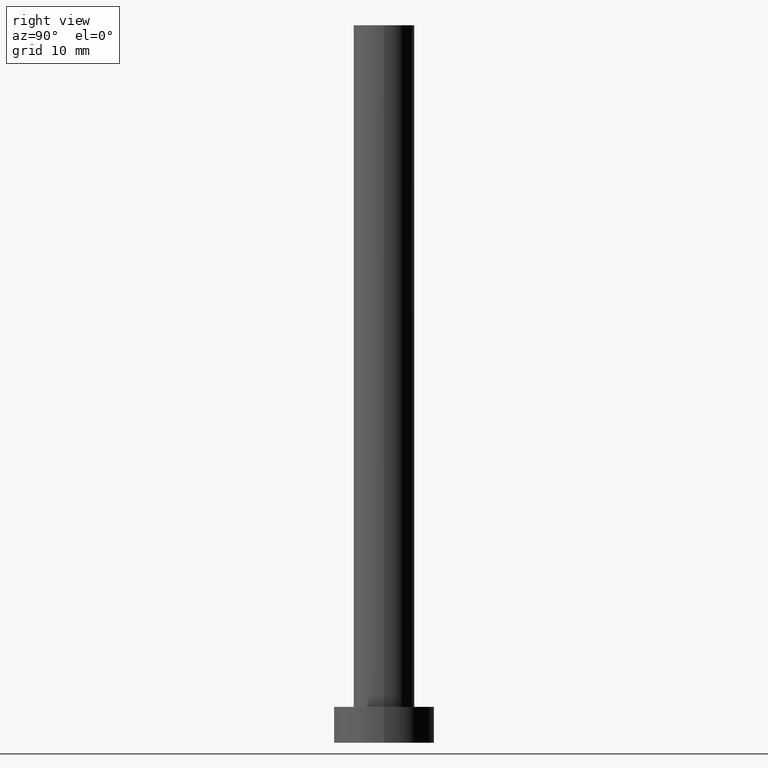
[diagram: clean part render]
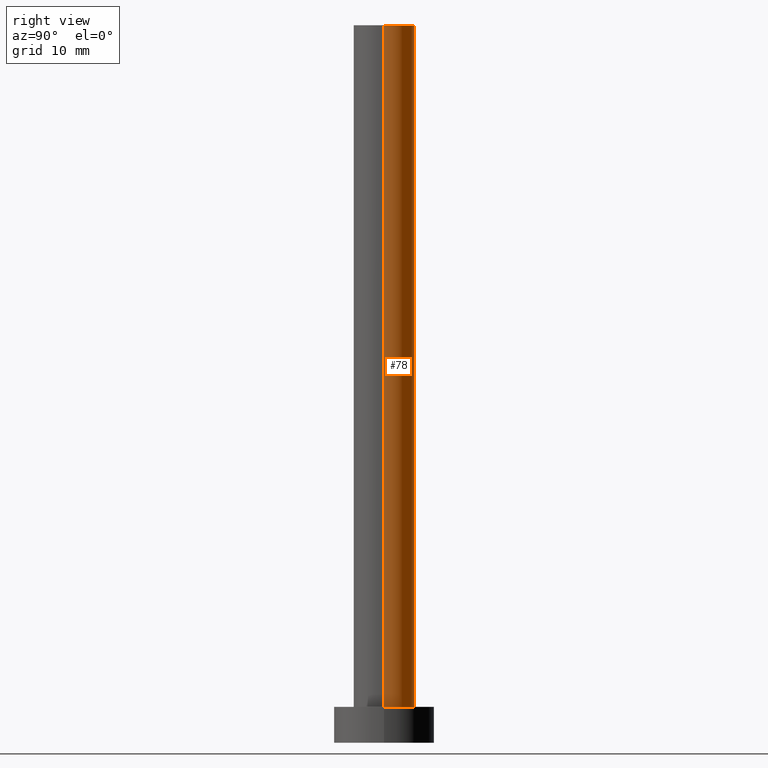
[diagram: same view with one face highlighted and labeled with its STEP entity id]
A machine part, right view. The second image highlights one B-rep face of the part: STEP entity #78.
In plain terms, the highlighted cylindrical surface (edge-blend (fillet) strip) has radius 4.25 mm, axis along (-0, -0, -1).
Its self-contained STEP definition (entity closure, byte-faithful):
#5 = EDGE_CURVE ( 'NONE', #208, #34, #149, .T. ) ;
#7 = AXIS2_PLACEMENT_3D ( 'NONE', #165, #176, #136 ) ;
#34 = VERTEX_POINT ( 'NONE', #171 ) ;
#35 = VECTOR ( 'NONE', #56, 1000.000000000000000 ) ;
#50 = DIRECTION ( 'NONE',  ( -0.000000000000000000, -0.000000000000000000, -1.000000000000000000 ) ) ;
#56 = DIRECTION ( 'NONE',  ( -0.000000000000000000, -0.000000000000000000, -1.000000000000000000 ) ) ;
#59 = LINE ( 'NONE', #98, #35 ) ;
#71 = CARTESIAN_POINT ( 'NONE',  ( 0.000000000000000000, 0.000000000000000000, 100.0000000000000000 ) ) ;
#78 = ADVANCED_FACE ( 'NONE', ( #193 ), #249, .T. ) ;
#79 = CARTESIAN_POINT ( 'NONE',  ( 4.250000000000000000, 5.204748896376250699E-16, 100.0000000000000000 ) ) ;
#84 = ORIENTED_EDGE ( 'NONE', *, *, #5, .T. ) ;
#89 = EDGE_CURVE ( 'NONE', #208, #128, #125, .T. ) ;
#92 = ORIENTED_EDGE ( 'NONE', *, *, #89, .F. ) ;
#96 = CARTESIAN_POINT ( 'NONE',  ( -4.250000000000000000, 0.000000000000000000, 5.000000000000000000 ) ) ;
#98 = CARTESIAN_POINT ( 'NONE',  ( -4.250000000000000000, 0.000000000000000000, 100.0000000000000000 ) ) ;
#117 = AXIS2_PLACEMENT_3D ( 'NONE', #178, #216, #239 ) ;
#125 = CIRCLE ( 'NONE', #7, 4.250000000000000000 ) ;
#128 = VERTEX_POINT ( 'NONE', #213 ) ;
#136 = DIRECTION ( 'NONE',  ( 1.000000000000000000, 0.000000000000000000, 0.000000000000000000 ) ) ;
#145 = VERTEX_POINT ( 'NONE', #96 ) ;
#149 = LINE ( 'NONE', #245, #209 ) ;
#165 = CARTESIAN_POINT ( 'NONE',  ( 0.000000000000000000, 0.000000000000000000, 100.0000000000000000 ) ) ;
#171 = CARTESIAN_POINT ( 'NONE',  ( 4.250000000000000000, 5.204748896376250699E-16, 5.000000000000000000 ) ) ;
#176 = DIRECTION ( 'NONE',  ( 0.000000000000000000, 0.000000000000000000, 1.000000000000000000 ) ) ;
#178 = CARTESIAN_POINT ( 'NONE',  ( 0.000000000000000000, 0.000000000000000000, 5.000000000000000000 ) ) ;
#185 = DIRECTION ( 'NONE',  ( -1.000000000000000000, 0.000000000000000000, 0.000000000000000000 ) ) ;
#187 = ORIENTED_EDGE ( 'NONE', *, *, #190, .T. ) ;
#190 = EDGE_CURVE ( 'NONE', #34, #145, #242, .T. ) ;
#193 = FACE_OUTER_BOUND ( 'NONE', #226, .T. ) ;
#206 = EDGE_CURVE ( 'NONE', #128, #145, #59, .T. ) ;
#208 = VERTEX_POINT ( 'NONE', #79 ) ;
#209 = VECTOR ( 'NONE', #50, 1000.000000000000000 ) ;
#213 = CARTESIAN_POINT ( 'NONE',  ( -4.250000000000000000, 0.000000000000000000, 100.0000000000000000 ) ) ;
#216 = DIRECTION ( 'NONE',  ( 0.000000000000000000, 0.000000000000000000, 1.000000000000000000 ) ) ;
#226 = EDGE_LOOP ( 'NONE', ( #92, #84, #187, #230 ) ) ;
#230 = ORIENTED_EDGE ( 'NONE', *, *, #206, .F. ) ;
#231 = DIRECTION ( 'NONE',  ( -0.000000000000000000, -0.000000000000000000, -1.000000000000000000 ) ) ;
#239 = DIRECTION ( 'NONE',  ( 1.000000000000000000, 0.000000000000000000, 0.000000000000000000 ) ) ;
#242 = CIRCLE ( 'NONE', #117, 4.250000000000000000 ) ;
#245 = CARTESIAN_POINT ( 'NONE',  ( 4.250000000000000000, 5.204748896376250699E-16, 100.0000000000000000 ) ) ;
#249 = CYLINDRICAL_SURFACE ( 'NONE', #254, 4.250000000000000000 ) ;
#254 = AXIS2_PLACEMENT_3D ( 'NONE', #71, #231, #185 ) ;